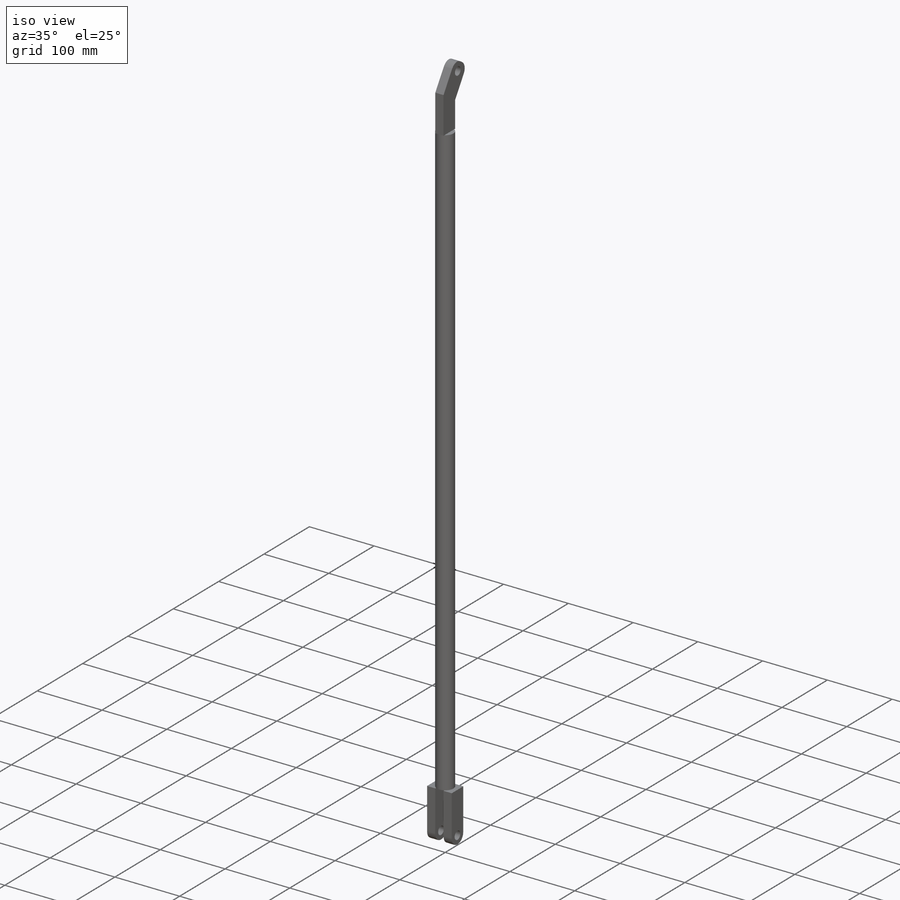
[diagram: iso view]
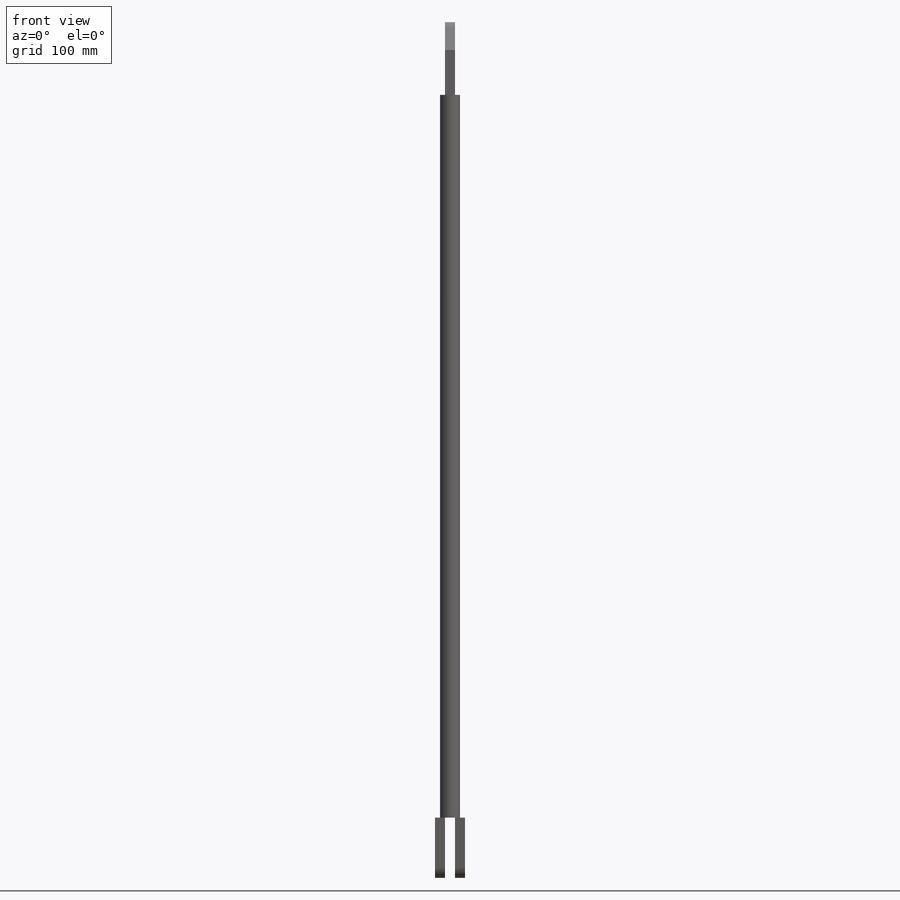
[diagram: front view]
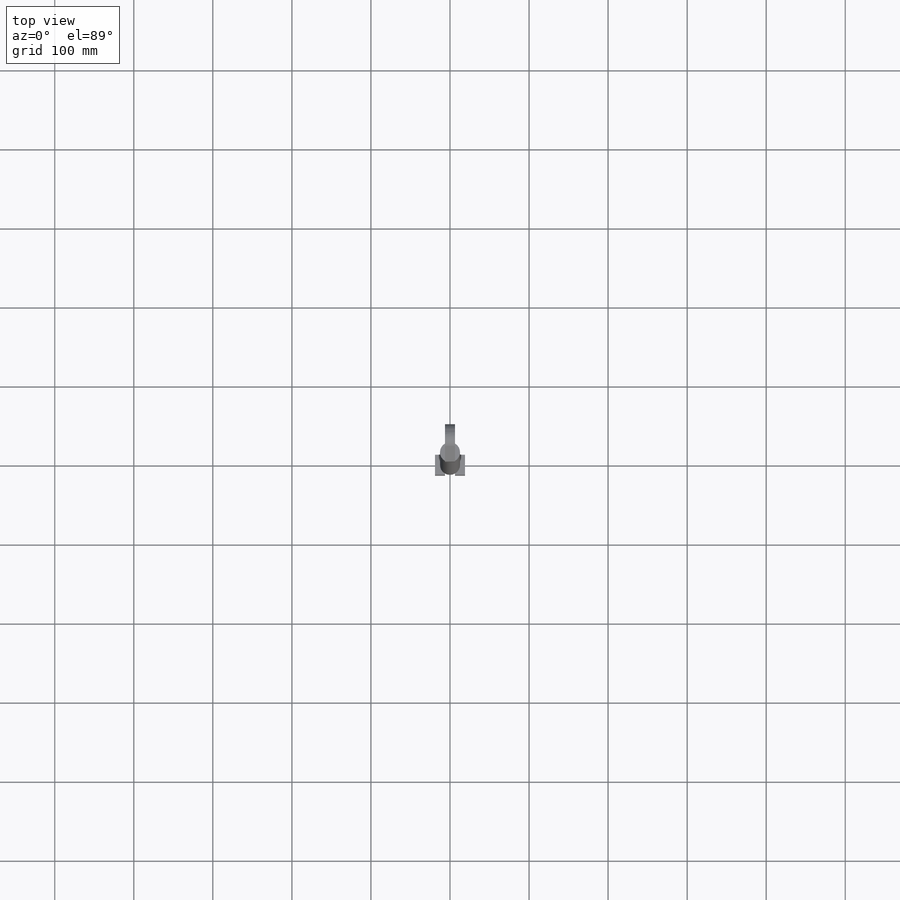
[diagram: top view]
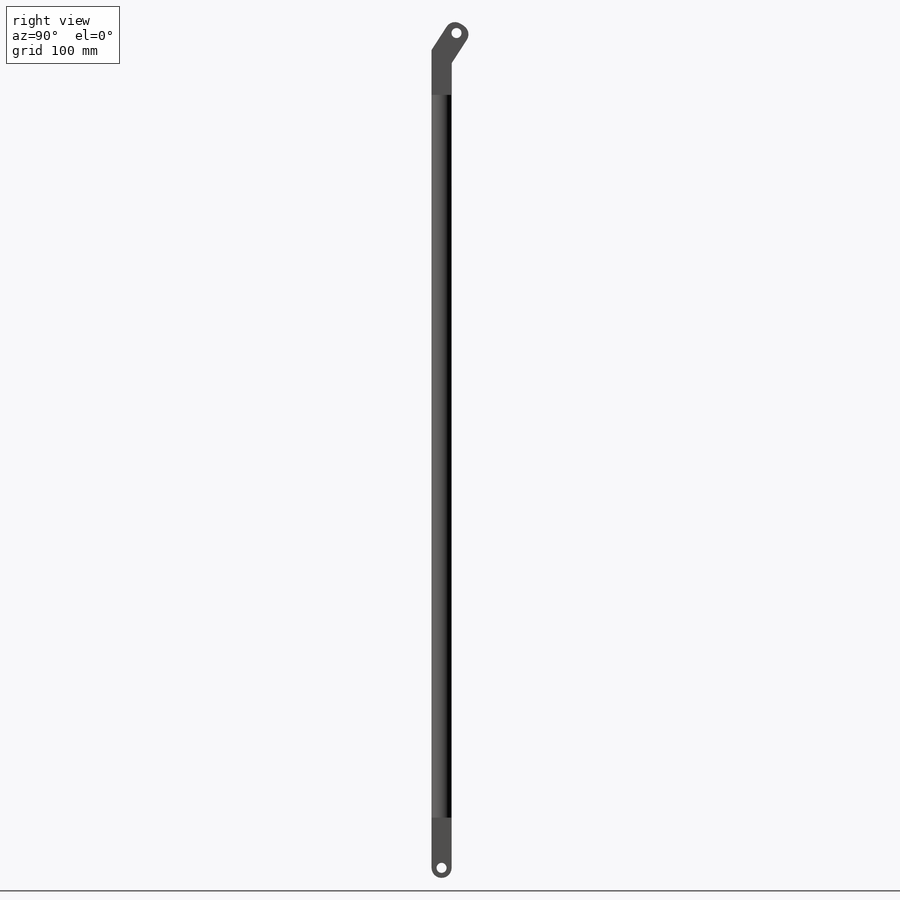
[diagram: right view]
SOLIDWORKS PART (.sldprt)
format: sldprt  version: not decoded by parser v0  size: 148,480 bytes
history: native  units: mm
features: sketch x5, extrude x3, material x1, fillet x1, hole x1 (+14 scaffold rows collapsed)
feature tree (25):
  scaffold x14  (default folders/planes/origin — collapsed)
  material  "Material <not specified>"
  sketch  "Sketch1"  dims[D1=25.4mm]
  extrude  "Extrude1"  Depth=914.4mm
  sketch  "Sketch4"  dims[D1=38.1mm D2=25.4mm D3=12.7mm]
  extrude  "Extrude3"  Depth=76.2mm
  sketch  "Sketch5"  dims[D1=30.48mm D2=76.2mm D3=~25.586283mm]
  extrude  "Extrude4"  Depth=12.7mm
  fillet  "Fillet2"  Radius=12.7mm
  hole  "1/2 (0.5) Diameter Hole2"  Diameter=12.7mm Depth=39.878mm
  sketch  "3DSketch2"  dims[D1=12.7mm]
  sketch  "Sketch6"  dims[hole-wizard template sketch: 50 standard entries collapsed; hole parameters above]
decode coverage: 10 of 10 modeling features carry decoded parameters
note: ~ marks probable driven/reference dimensions
note: suppression state not decoded; provenance and decode notes live in map.json
